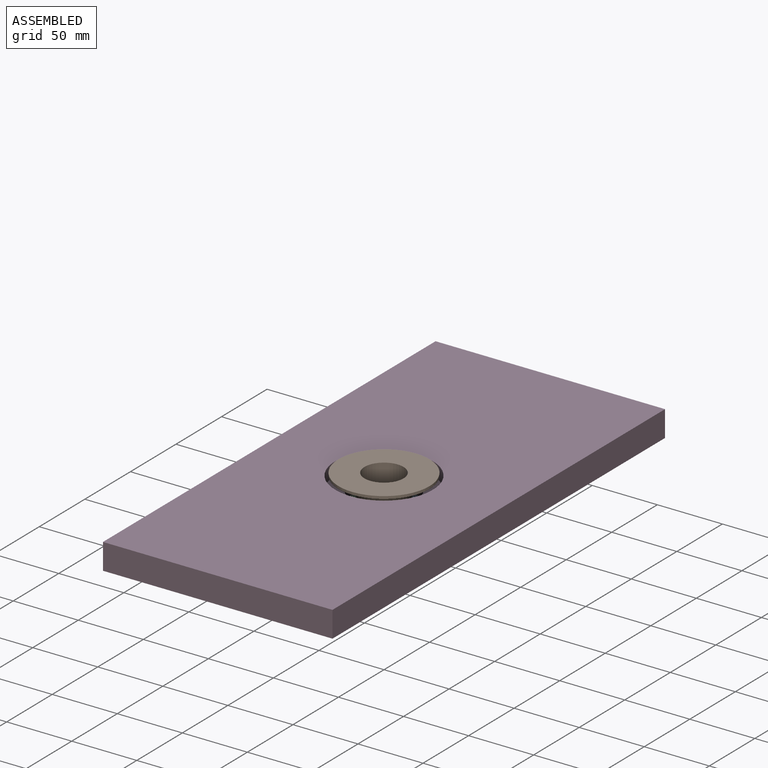
[diagram: assembled view]
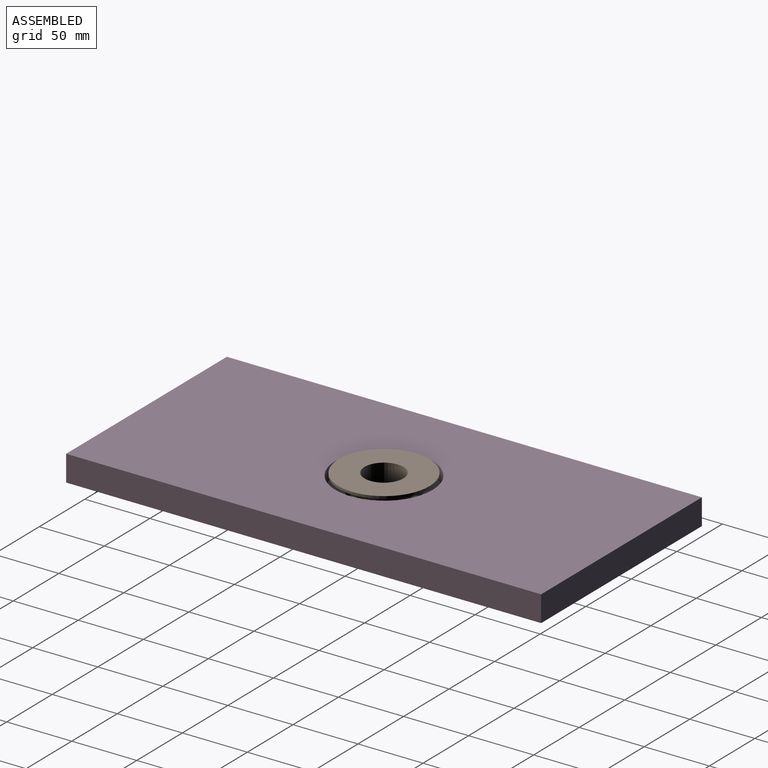
[diagram: assembled view, second angle]
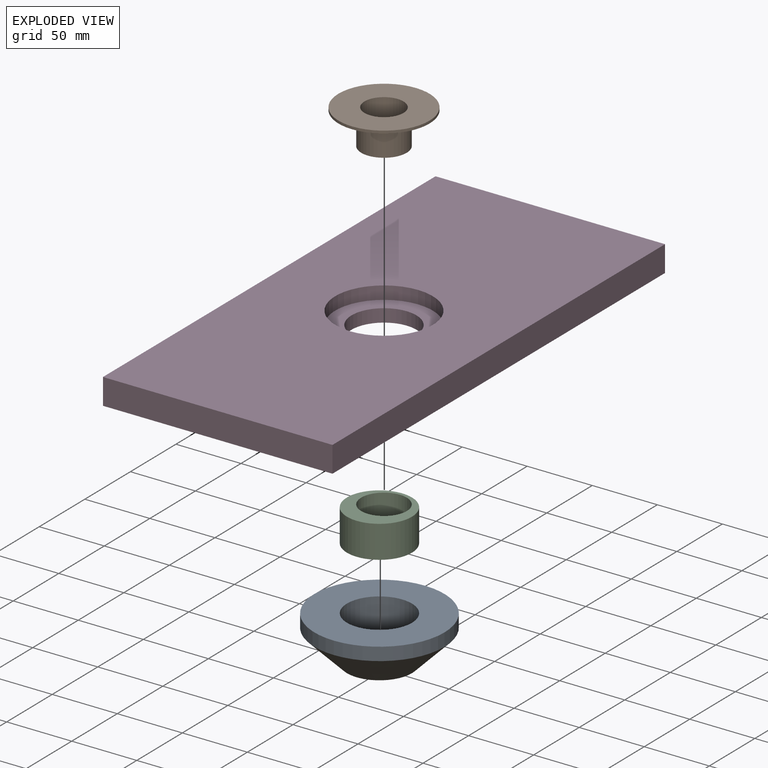
[diagram: exploded view]
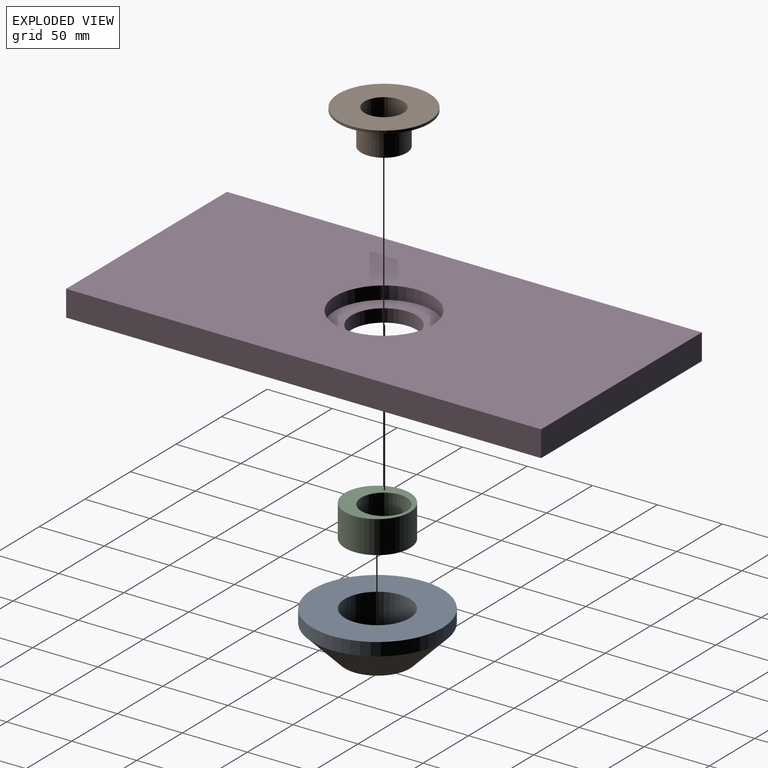
[diagram: exploded view, second angle]
ASSEMBLY  parts=4 mates=6
PART A: 4 faces, bbox 100x100x35 mm
  f0: cylinder r=25mm len=50mm, axis (0,0,1), area 5497.8mm2, adj f2,f3
  f1: cylinder r=50mm len=100mm, axis (0,0,1), area 3141.6mm2, adj f2,f3
  f2: plane 100x100mm, normal (0,0,1), area 5890.5mm2, adj f0,f1
  f3: cone r=50mm half-angle=45deg, axis (0,0,1), area 8330.4mm2, adj f0,f1
PART B: 6 faces, bbox 70x70x27 mm
  f0: cylinder r=35mm len=70mm, axis (0,0,-1), area 439.8mm2, adj f2,f3
  f1: cylinder r=15mm len=30mm, axis (0,0,-1), area 2544.7mm2, adj f2,f5
  f2: plane 70x70mm, normal (0,0,1), area 3141.6mm2, adj f0,f1
  f3: plane 70x70mm, normal (0,0,-1), area 2886.3mm2, adj f0,f4
  f4: cylinder r=17.5mm len=35mm, axis (0,0,1), area 2748.9mm2, adj f3,f5
  f5: plane 35x35mm, normal (0,0,-1), area 255.3mm2, adj f1,f4
PART C: 4 faces, bbox 50x50x25 mm
  f0: cylinder r=17.5mm len=35mm, axis (0,0,1), area 2748.9mm2, adj f2,f3
  f1: cylinder r=25mm len=50mm, axis (0,0,1), area 3927mm2, adj f2,f3
  f2: plane 50x50mm, normal (0,0,-1), area 1001.4mm2, adj f0,f1
  f3: plane 50x50mm, normal (0,0,1), area 1001.4mm2, adj f0,f1
PART D: 9 faces, bbox 365.1x176.4x20 mm
  f0: plane 176.41x20mm, normal (1,0,0), area 3528.2mm2, adj f1,f3,f5,f6
  f1: plane 365.07x20mm, normal (0,1,0), area 7301.4mm2, adj f0,f2,f5,f6
  f2: plane 176.41x20mm, normal (-1,0,0), area 3528.2mm2, adj f1,f3,f5,f6
  f3: plane 365.07x20mm, normal (0,-1,0), area 7301.4mm2, adj f0,f2,f5,f6
  f4: cylinder r=37.5mm len=75mm, axis (0,0,-1), area 2356.2mm2, adj f5,f8
  f5: plane 365.07x176.41mm, normal (0,0,1), area 59984.5mm2, adj f0,f1,f2,f3,f4
  f6: plane 365.07x176.41mm, normal (0,0,-1), area 62438.9mm2, adj f0,f1,f2,f3,f7
  f7: cylinder r=25mm len=50mm, axis (0,0,-1), area 1570.8mm2, adj f6,f8
  f8: plane 75x75mm, normal (0,0,1), area 2454.4mm2, adj f4,f7
PLACE A rot(axis=(0,0,1),0deg) t=(0,-5,0)mm
PLACE B rot(axis=(0,0,1),0deg) t=(0,0,20)mm
PLACE C rot(axis=(0,0,1),0deg) t=(0,-5,0)mm
PLACE D rot(axis=(0,0,1),90deg) t=(0,0,0)mm
MATE planar C.f3 <-> A.f1  axis (0,0,1) through (0,-9.8,0)mm
MATE planar B.f0 <-> D.f4  axis (0,0,-1) through (0,0,20)mm
MATE cylindrical B.f1 <-> C.f0  axis (0,0,1) through (0,0,22)mm
MATE cylindrical C.f1 <-> A.f0  axis (0,0,-1) through (0,-5,-25)mm
MATE planar D.f7 <-> A.f1  axis (0,0,-1) through (0,0,0)mm
MATE cylindrical C.f0 <-> D.f7  axis (0,0,1) through (0,0,0)mm
